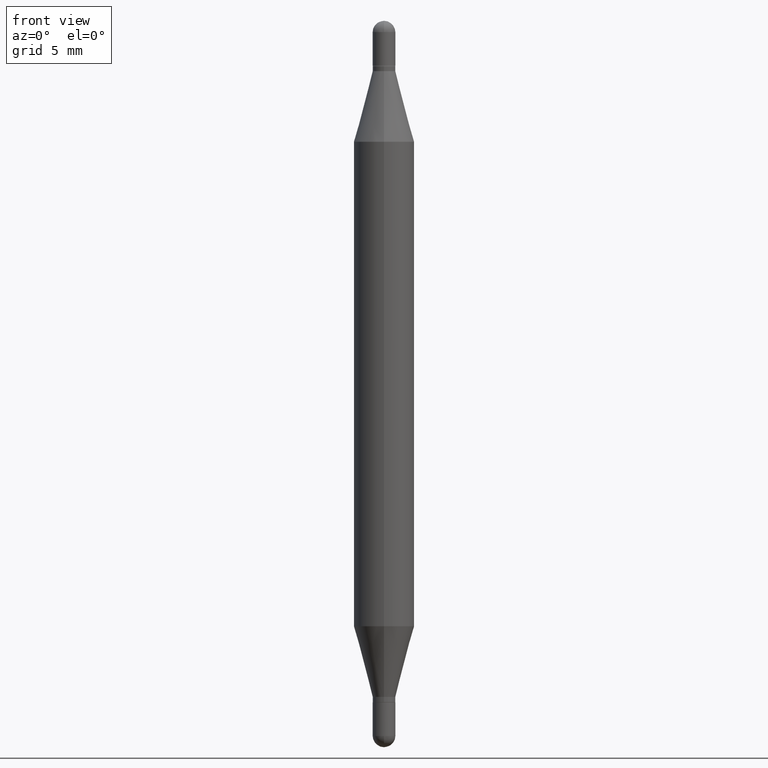
[diagram: clean part render]
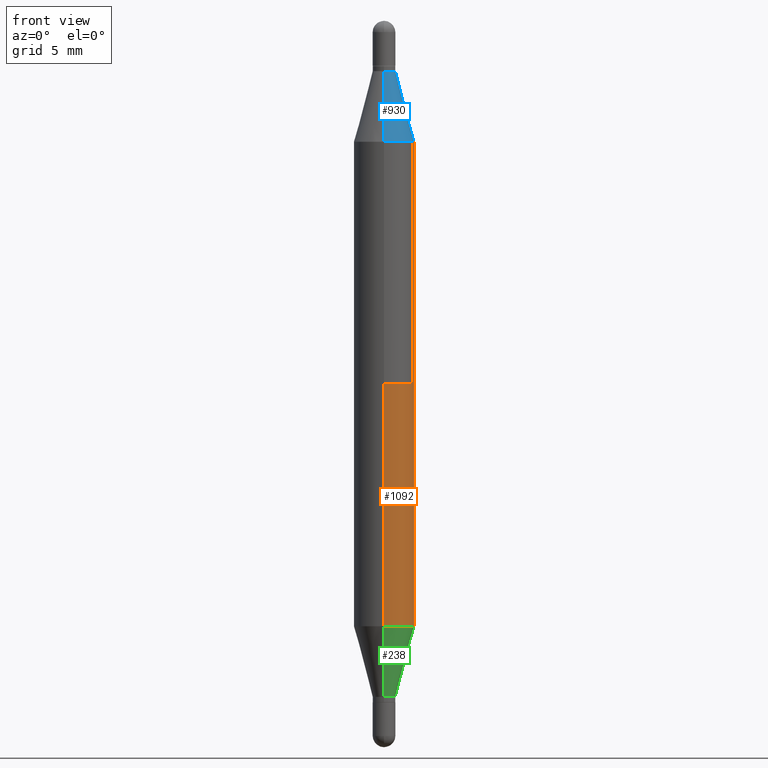
[diagram: same view with three faces highlighted in distinct colors, each labeled with its STEP entity id]
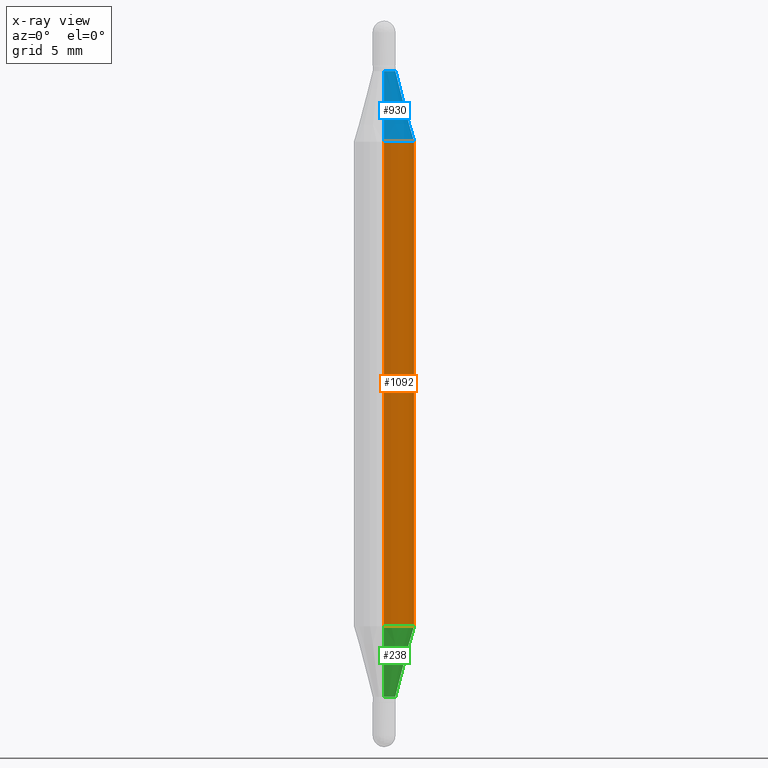
[diagram: x-ray of the same camera — body ghosted, the three highlighted faces saturated]
A machine part, front view with three faces highlighted in distinct colors.
The next image is the same camera in x-ray (body ghosted, the three faces saturated) — at least one of them is partly hidden behind the body in this view.
Their STEP definitions:

[orange] entity #1092 — the highlighted cylindrical surface (edge-blend (fillet) strip) has radius 1.5875 mm, axis along (-0, -0, -1).
#31 = VECTOR ( 'NONE', #339, 39.37007874015748143 ) ;
#52 = VERTEX_POINT ( 'NONE', #277 ) ;
#76 = FACE_OUTER_BOUND ( 'NONE', #954, .T. ) ;
#93 = VERTEX_POINT ( 'NONE', #431 ) ;
#96 = DIRECTION ( 'NONE',  ( -2.445236134647148401E-29, -3.479281268092587751E-15, -1.000000000000000000 ) ) ;
#129 = VECTOR ( 'NONE', #1052, 39.37007874015748143 ) ;
#131 = ORIENTED_EDGE ( 'NONE', *, *, #332, .T. ) ;
#176 = CIRCLE ( 'NONE', #857, 0.06250000000000000000 ) ;
#210 = VERTEX_POINT ( 'NONE', #1117 ) ;
#226 = EDGE_CURVE ( 'NONE', #93, #879, #854, .T. ) ;
#239 = CARTESIAN_POINT ( 'NONE',  ( 3.057189282543616555E-29, -8.783037710192168733E-16, -0.2497365840355639799 ) ) ;
#277 = CARTESIAN_POINT ( 'NONE',  ( -4.364351673553611010E-16, -0.06250000000000087430, -0.2497365840355637856 ) ) ;
#284 = AXIS2_PLACEMENT_3D ( 'NONE', #310, #829, #717 ) ;
#310 = CARTESIAN_POINT ( 'NONE',  ( 3.057189282543616555E-29, -4.365687971854568323E-15, -1.250263415964435687 ) ) ;
#332 = EDGE_CURVE ( 'NONE', #52, #93, #579, .T. ) ;
#339 = DIRECTION ( 'NONE',  ( -2.445236134647148681E-29, -3.479281268092587357E-15, -1.000000000000000000 ) ) ;
#431 = CARTESIAN_POINT ( 'NONE',  ( -4.364351673553610517E-16, -0.06250000000000435763, -1.250263415964435243 ) ) ;
#436 = DIRECTION ( 'NONE',  ( -6.982962677686265922E-15, -1.000000000000000000, 4.370956789862821150E-15 ) ) ;
#521 = CARTESIAN_POINT ( 'NONE',  ( 0.000000000000000000, -5.228321854365729194E-15, -1.499999999999999556 ) ) ;
#579 = LINE ( 'NONE', #939, #31 ) ;
#602 = CYLINDRICAL_SURFACE ( 'NONE', #721, 0.06250000000000000000 ) ;
#616 = CARTESIAN_POINT ( 'NONE',  ( 4.287811248607206733E-16, 0.06249999999999477501, -1.499999999999999778 ) ) ;
#640 = DIRECTION ( 'NONE',  ( 2.445236134647148401E-29, 3.479281268092587751E-15, 1.000000000000000000 ) ) ;
#717 = DIRECTION ( 'NONE',  ( -6.982962677686265922E-15, -1.000000000000000000, 4.370956789862821150E-15 ) ) ;
#720 = EDGE_CURVE ( 'NONE', #210, #879, #888, .T. ) ;
#721 = AXIS2_PLACEMENT_3D ( 'NONE', #521, #96, #436 ) ;
#734 = ORIENTED_EDGE ( 'NONE', *, *, #910, .F. ) ;
#759 = ORIENTED_EDGE ( 'NONE', *, *, #226, .T. ) ;
#829 = DIRECTION ( 'NONE',  ( -2.445236134647148401E-29, 3.491814537728386085E-15, 1.000000000000000000 ) ) ;
#854 = CIRCLE ( 'NONE', #284, 0.06250000000000000000 ) ;
#857 = AXIS2_PLACEMENT_3D ( 'NONE', #239, #640, #1001 ) ;
#879 = VERTEX_POINT ( 'NONE', #1083 ) ;
#888 = LINE ( 'NONE', #616, #129 ) ;
#910 = EDGE_CURVE ( 'NONE', #52, #210, #176, .T. ) ;
#913 = ORIENTED_EDGE ( 'NONE', *, *, #720, .F. ) ;
#939 = CARTESIAN_POINT ( 'NONE',  ( -4.364351673553916201E-16, -0.06250000000000521805, -1.499999999999999334 ) ) ;
#954 = EDGE_LOOP ( 'NONE', ( #913, #734, #131, #759 ) ) ;
#1001 = DIRECTION ( 'NONE',  ( -6.982962677686265922E-15, -1.000000000000000000, 3.278217592397115862E-15 ) ) ;
#1052 = DIRECTION ( 'NONE',  ( -2.445236134647148681E-29, -3.479281268092587357E-15, -1.000000000000000000 ) ) ;
#1083 = CARTESIAN_POINT ( 'NONE',  ( 4.287811248607390637E-16, 0.06249999999999563544, -1.250263415964435909 ) ) ;
#1092 = ADVANCED_FACE ( 'NONE', ( #76 ), #602, .T. ) ;
#1117 = CARTESIAN_POINT ( 'NONE',  ( 4.287811248607511924E-16, 0.06249999999999911876, -0.2497365840355641742 ) ) ;

[blue] entity #930 — the highlighted conical surface has half-angle 15 deg.
#50 = DIRECTION ( 'NONE',  ( -6.982962677686266711E-15, -1.000000000000000000, 3.640522379616567654E-15 ) ) ;
#77 = EDGE_CURVE ( 'NONE', #1017, #519, #440, .T. ) ;
#97 = DIRECTION ( 'NONE',  ( 2.445236134647148401E-29, 3.479281268092587751E-15, 1.000000000000000000 ) ) ;
#172 = DIRECTION ( 'NONE',  ( 2.445236134647148401E-29, 3.479281268092587751E-15, 1.000000000000000000 ) ) ;
#184 = CARTESIAN_POINT ( 'NONE',  ( 3.413549643967419566E-29, -3.712452041084765820E-16, -0.1039999999999994956 ) ) ;
#231 = FACE_OUTER_BOUND ( 'NONE', #653, .T. ) ;
#258 = CARTESIAN_POINT ( 'NONE',  ( 3.057189282543616555E-29, -8.783037710192168733E-16, -0.2497365840355639799 ) ) ;
#295 = ORIENTED_EDGE ( 'NONE', *, *, #529, .F. ) ;
#319 = CARTESIAN_POINT ( 'NONE',  ( 1.608786780477759945E-16, 0.02344999999999955106, -0.1039999999999995789 ) ) ;
#323 = ORIENTED_EDGE ( 'NONE', *, *, #813, .F. ) ;
#335 = EDGE_CURVE ( 'NONE', #537, #1017, #501, .T. ) ;
#340 = VECTOR ( 'NONE', #644, 39.37007874015748143 ) ;
#393 = AXIS2_PLACEMENT_3D ( 'NONE', #574, #746, #50 ) ;
#440 = CIRCLE ( 'NONE', #852, 0.06250000000000000000 ) ;
#473 = CARTESIAN_POINT ( 'NONE',  ( 4.287811248607511924E-16, 0.06249999999999911876, -0.2497365840355641742 ) ) ;
#497 = CARTESIAN_POINT ( 'NONE',  ( -1.637504747917082906E-16, -0.02345000000000029353, -0.1039999999999994124 ) ) ;
#501 = LINE ( 'NONE', #497, #1019 ) ;
#514 = DIRECTION ( 'NONE',  ( -6.982962677686265922E-15, -1.000000000000000000, 3.278217592397115862E-15 ) ) ;
#519 = VERTEX_POINT ( 'NONE', #473 ) ;
#522 = CIRCLE ( 'NONE', #964, 0.02344999999999992230 ) ;
#529 = EDGE_CURVE ( 'NONE', #622, #519, #1088, .T. ) ;
#537 = VERTEX_POINT ( 'NONE', #1004 ) ;
#574 = CARTESIAN_POINT ( 'NONE',  ( 3.413549643967419566E-29, -3.712452041084765820E-16, -0.1039999999999994956 ) ) ;
#617 = ORIENTED_EDGE ( 'NONE', *, *, #77, .T. ) ;
#622 = VERTEX_POINT ( 'NONE', #787 ) ;
#644 = DIRECTION ( 'NONE',  ( 1.775627540710964511E-15, 0.2588190451025181305, -0.9659258262890689783 ) ) ;
#653 = EDGE_LOOP ( 'NONE', ( #295, #323, #1067, #617 ) ) ;
#686 = DIRECTION ( 'NONE',  ( -6.982962677686266711E-15, -1.000000000000000000, 3.640522379616567654E-15 ) ) ;
#746 = DIRECTION ( 'NONE',  ( -2.445236134647148401E-29, -3.479281268092587751E-15, -1.000000000000000000 ) ) ;
#787 = CARTESIAN_POINT ( 'NONE',  ( 1.608786780477761424E-16, 0.02344999999999955106, -0.1039999999999995789 ) ) ;
#795 = CONICAL_SURFACE ( 'NONE', #393, 0.02344999999999992230, 0.2617993877991502405 ) ;
#813 = EDGE_CURVE ( 'NONE', #537, #622, #522, .T. ) ;
#852 = AXIS2_PLACEMENT_3D ( 'NONE', #258, #172, #514 ) ;
#930 = ADVANCED_FACE ( 'NONE', ( #231 ), #795, .T. ) ;
#964 = AXIS2_PLACEMENT_3D ( 'NONE', #184, #97, #686 ) ;
#1004 = CARTESIAN_POINT ( 'NONE',  ( -1.637504747917082906E-16, -0.02345000000000029353, -0.1039999999999994124 ) ) ;
#1013 = DIRECTION ( 'NONE',  ( -1.807323732225329745E-15, -0.2588190451025249028, -0.9659258262890670910 ) ) ;
#1017 = VERTEX_POINT ( 'NONE', #1045 ) ;
#1019 = VECTOR ( 'NONE', #1013, 39.37007874015748143 ) ;
#1045 = CARTESIAN_POINT ( 'NONE',  ( -4.364351673553611010E-16, -0.06250000000000087430, -0.2497365840355637856 ) ) ;
#1067 = ORIENTED_EDGE ( 'NONE', *, *, #335, .T. ) ;
#1088 = LINE ( 'NONE', #319, #340 ) ;

[green] entity #238 — the highlighted conical surface has half-angle 15 deg.
#3 = ORIENTED_EDGE ( 'NONE', *, *, #276, .T. ) ;
#93 = VERTEX_POINT ( 'NONE', #431 ) ;
#152 = ORIENTED_EDGE ( 'NONE', *, *, #421, .F. ) ;
#153 = CARTESIAN_POINT ( 'NONE',  ( -1.637504747917082906E-16, -0.02345000000000479687, -1.396000000000000130 ) ) ;
#188 = ORIENTED_EDGE ( 'NONE', *, *, #226, .F. ) ;
#226 = EDGE_CURVE ( 'NONE', #93, #879, #854, .T. ) ;
#237 = CARTESIAN_POINT ( 'NONE',  ( 3.413549643967419566E-29, -4.874573094668826805E-15, -1.396000000000000130 ) ) ;
#238 = ADVANCED_FACE ( 'NONE', ( #902 ), #916, .T. ) ;
#276 = EDGE_CURVE ( 'NONE', #692, #879, #995, .T. ) ;
#284 = AXIS2_PLACEMENT_3D ( 'NONE', #310, #829, #717 ) ;
#302 = AXIS2_PLACEMENT_3D ( 'NONE', #730, #915, #1086 ) ;
#310 = CARTESIAN_POINT ( 'NONE',  ( 3.057189282543616555E-29, -4.365687971854568323E-15, -1.250263415964435687 ) ) ;
#351 = CARTESIAN_POINT ( 'NONE',  ( -1.637504747917082906E-16, -0.02345000000000479687, -1.396000000000000130 ) ) ;
#368 = CARTESIAN_POINT ( 'NONE',  ( 1.666222715357772816E-16, 0.02344999999999504772, -1.396000000000000130 ) ) ;
#372 = VECTOR ( 'NONE', #724, 39.37007874015748143 ) ;
#394 = CARTESIAN_POINT ( 'NONE',  ( 1.666222715357770350E-16, 0.02344999999999504772, -1.396000000000000130 ) ) ;
#421 = EDGE_CURVE ( 'NONE', #1046, #93, #1082, .T. ) ;
#431 = CARTESIAN_POINT ( 'NONE',  ( -4.364351673553610517E-16, -0.06250000000000435763, -1.250263415964435243 ) ) ;
#442 = VECTOR ( 'NONE', #638, 39.37007874015748143 ) ;
#538 = EDGE_CURVE ( 'NONE', #1046, #692, #1057, .T. ) ;
#577 = AXIS2_PLACEMENT_3D ( 'NONE', #237, #957, #860 ) ;
#606 = ORIENTED_EDGE ( 'NONE', *, *, #538, .T. ) ;
#638 = DIRECTION ( 'NONE',  ( -1.807323732225329745E-15, -0.2588190451025181305, 0.9659258262890689783 ) ) ;
#692 = VERTEX_POINT ( 'NONE', #368 ) ;
#717 = DIRECTION ( 'NONE',  ( -6.982962677686265922E-15, -1.000000000000000000, 4.370956789862821150E-15 ) ) ;
#724 = DIRECTION ( 'NONE',  ( 1.839019923739599921E-15, 0.2588190451025249028, 0.9659258262890670910 ) ) ;
#730 = CARTESIAN_POINT ( 'NONE',  ( 3.413549643967419566E-29, -4.874573094668826805E-15, -1.396000000000000130 ) ) ;
#829 = DIRECTION ( 'NONE',  ( -2.445236134647148401E-29, 3.491814537728386085E-15, 1.000000000000000000 ) ) ;
#854 = CIRCLE ( 'NONE', #284, 0.06250000000000000000 ) ;
#860 = DIRECTION ( 'NONE',  ( -6.982962677686266711E-15, -1.000000000000000000, 0.000000000000000000 ) ) ;
#879 = VERTEX_POINT ( 'NONE', #1083 ) ;
#885 = EDGE_LOOP ( 'NONE', ( #606, #3, #188, #152 ) ) ;
#902 = FACE_OUTER_BOUND ( 'NONE', #885, .T. ) ;
#915 = DIRECTION ( 'NONE',  ( -2.445236134647148401E-29, 3.491814537728386085E-15, 1.000000000000000000 ) ) ;
#916 = CONICAL_SURFACE ( 'NONE', #302, 0.02344999999999992230, 0.2617993877991502405 ) ;
#957 = DIRECTION ( 'NONE',  ( -2.445236134647148401E-29, 3.491814537728386085E-15, 1.000000000000000000 ) ) ;
#995 = LINE ( 'NONE', #394, #372 ) ;
#1046 = VERTEX_POINT ( 'NONE', #351 ) ;
#1057 = CIRCLE ( 'NONE', #577, 0.02344999999999992230 ) ;
#1082 = LINE ( 'NONE', #153, #442 ) ;
#1083 = CARTESIAN_POINT ( 'NONE',  ( 4.287811248607390637E-16, 0.06249999999999563544, -1.250263415964435909 ) ) ;
#1086 = DIRECTION ( 'NONE',  ( -6.982962677686266711E-15, -1.000000000000000000, 0.000000000000000000 ) ) ;